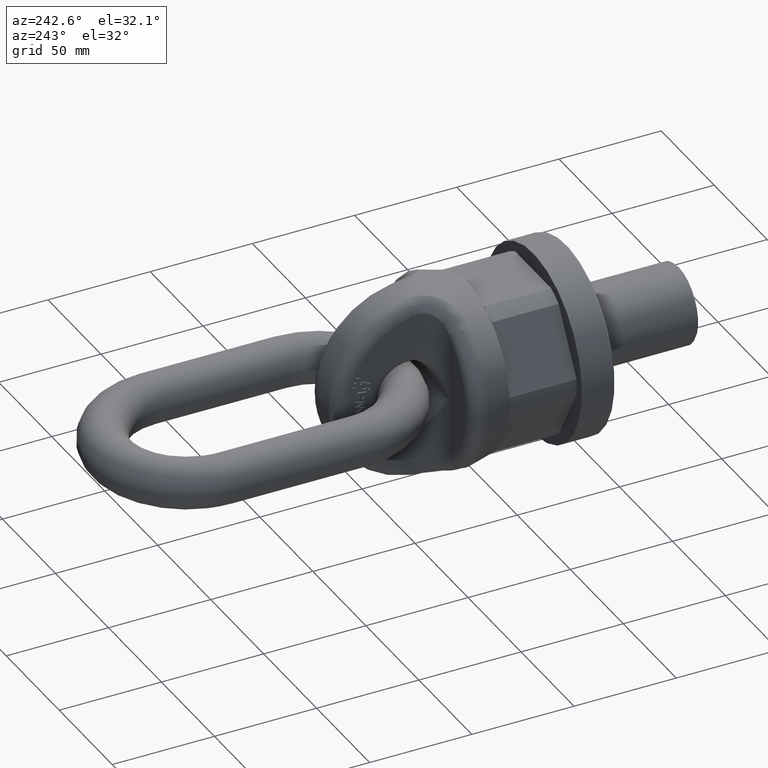
[diagram: clean part render]
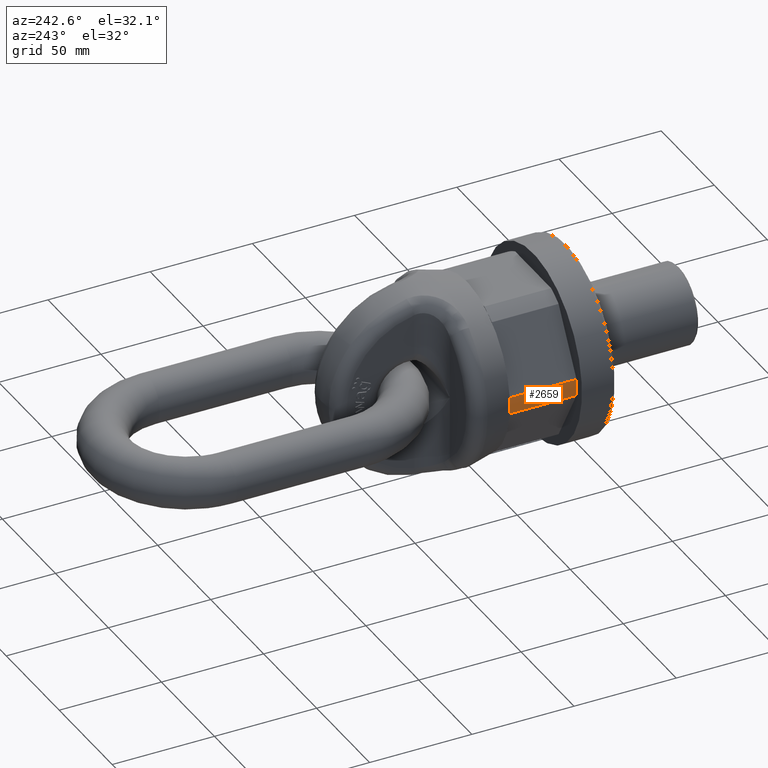
[diagram: same view with one face highlighted and labeled with its STEP entity id]
A machine part, auxiliary view. The second image highlights one B-rep face of the part: STEP entity #2659.
In plain terms, the highlighted cylindrical surface (partial cylindrical patch) has radius 41.1362 mm, axis along (-0, 1, 0).
Its self-contained STEP definition (entity closure, byte-faithful):
#1817=FACE_OUTER_BOUND('',#3082,.T.);
#2025=CYLINDRICAL_SURFACE('',#5634,41.1362066797608);
#2047=LINE('',#6605,#2303);
#2051=LINE('',#6613,#2307);
#2303=VECTOR('',#5843,1.);
#2307=VECTOR('',#5849,1.);
#2659=ADVANCED_FACE('',(#1817),#2025,.T.);
#3082=EDGE_LOOP('',(#3420,#3421,#3422,#3423));
#3420=ORIENTED_EDGE('',*,*,#4949,.F.);
#3421=ORIENTED_EDGE('',*,*,#4957,.T.);
#3422=ORIENTED_EDGE('',*,*,#4976,.T.);
#3423=ORIENTED_EDGE('',*,*,#4961,.T.);
#4551=VERTEX_POINT('',#6587);
#4552=VERTEX_POINT('',#6589);
#4559=VERTEX_POINT('',#6606);
#4562=VERTEX_POINT('',#6614);
#4949=EDGE_CURVE('',#4551,#4552,#5542,.T.);
#4957=EDGE_CURVE('',#4551,#4559,#2047,.T.);
#4961=EDGE_CURVE('',#4562,#4552,#2051,.T.);
#4976=EDGE_CURVE('',#4559,#4562,#5548,.T.);
#5542=CIRCLE('',#5610,41.1362066797608);
#5548=CIRCLE('',#5624,41.1362066797608);
#5610=AXIS2_PLACEMENT_3D('',#6588,#5826,#5827);
#5624=AXIS2_PLACEMENT_3D('',#6642,#5875,#5876);
#5634=AXIS2_PLACEMENT_3D('',#6652,#5895,#5896);
#5826=DIRECTION('',(4.81111242522174E-17,-1.,0.));
#5827=DIRECTION('',(-1.,-8.43404687010335E-17,0.));
#5843=DIRECTION('',(-2.4492935982947E-17,1.,0.));
#5849=DIRECTION('',(2.4492935982947E-17,-1.,0.));
#5875=DIRECTION('',(0.,-1.,0.));
#5876=DIRECTION('',(0.,0.,-1.));
#5895=DIRECTION('',(-2.4492935982947E-17,1.,0.));
#5896=DIRECTION('',(-1.,-2.4492935982947E-17,0.));
#6587=CARTESIAN_POINT('',(-40.9307959284594,16.3333333333333,4.10578185767493));
#6588=CARTESIAN_POINT('',(-4.00051287721468E-16,16.3333333333333,0.));
#6589=CARTESIAN_POINT('',(-40.9307959284594,16.3333333333333,-4.10578185767495));
#6605=CARTESIAN_POINT('',(-40.9307959284594,-2.07083935363146E-16,4.10578185767493));
#6606=CARTESIAN_POINT('',(-40.9307959284594,49.,4.10578185767492));
#6613=CARTESIAN_POINT('',(-40.9307959284594,-2.07083935363145E-16,-4.10578185767495));
#6614=CARTESIAN_POINT('',(-40.9307959284594,49.,-4.10578185767492));
#6642=CARTESIAN_POINT('',(-1.20015386316441E-15,49.,0.));
#6652=CARTESIAN_POINT('',(0.,0.,0.));